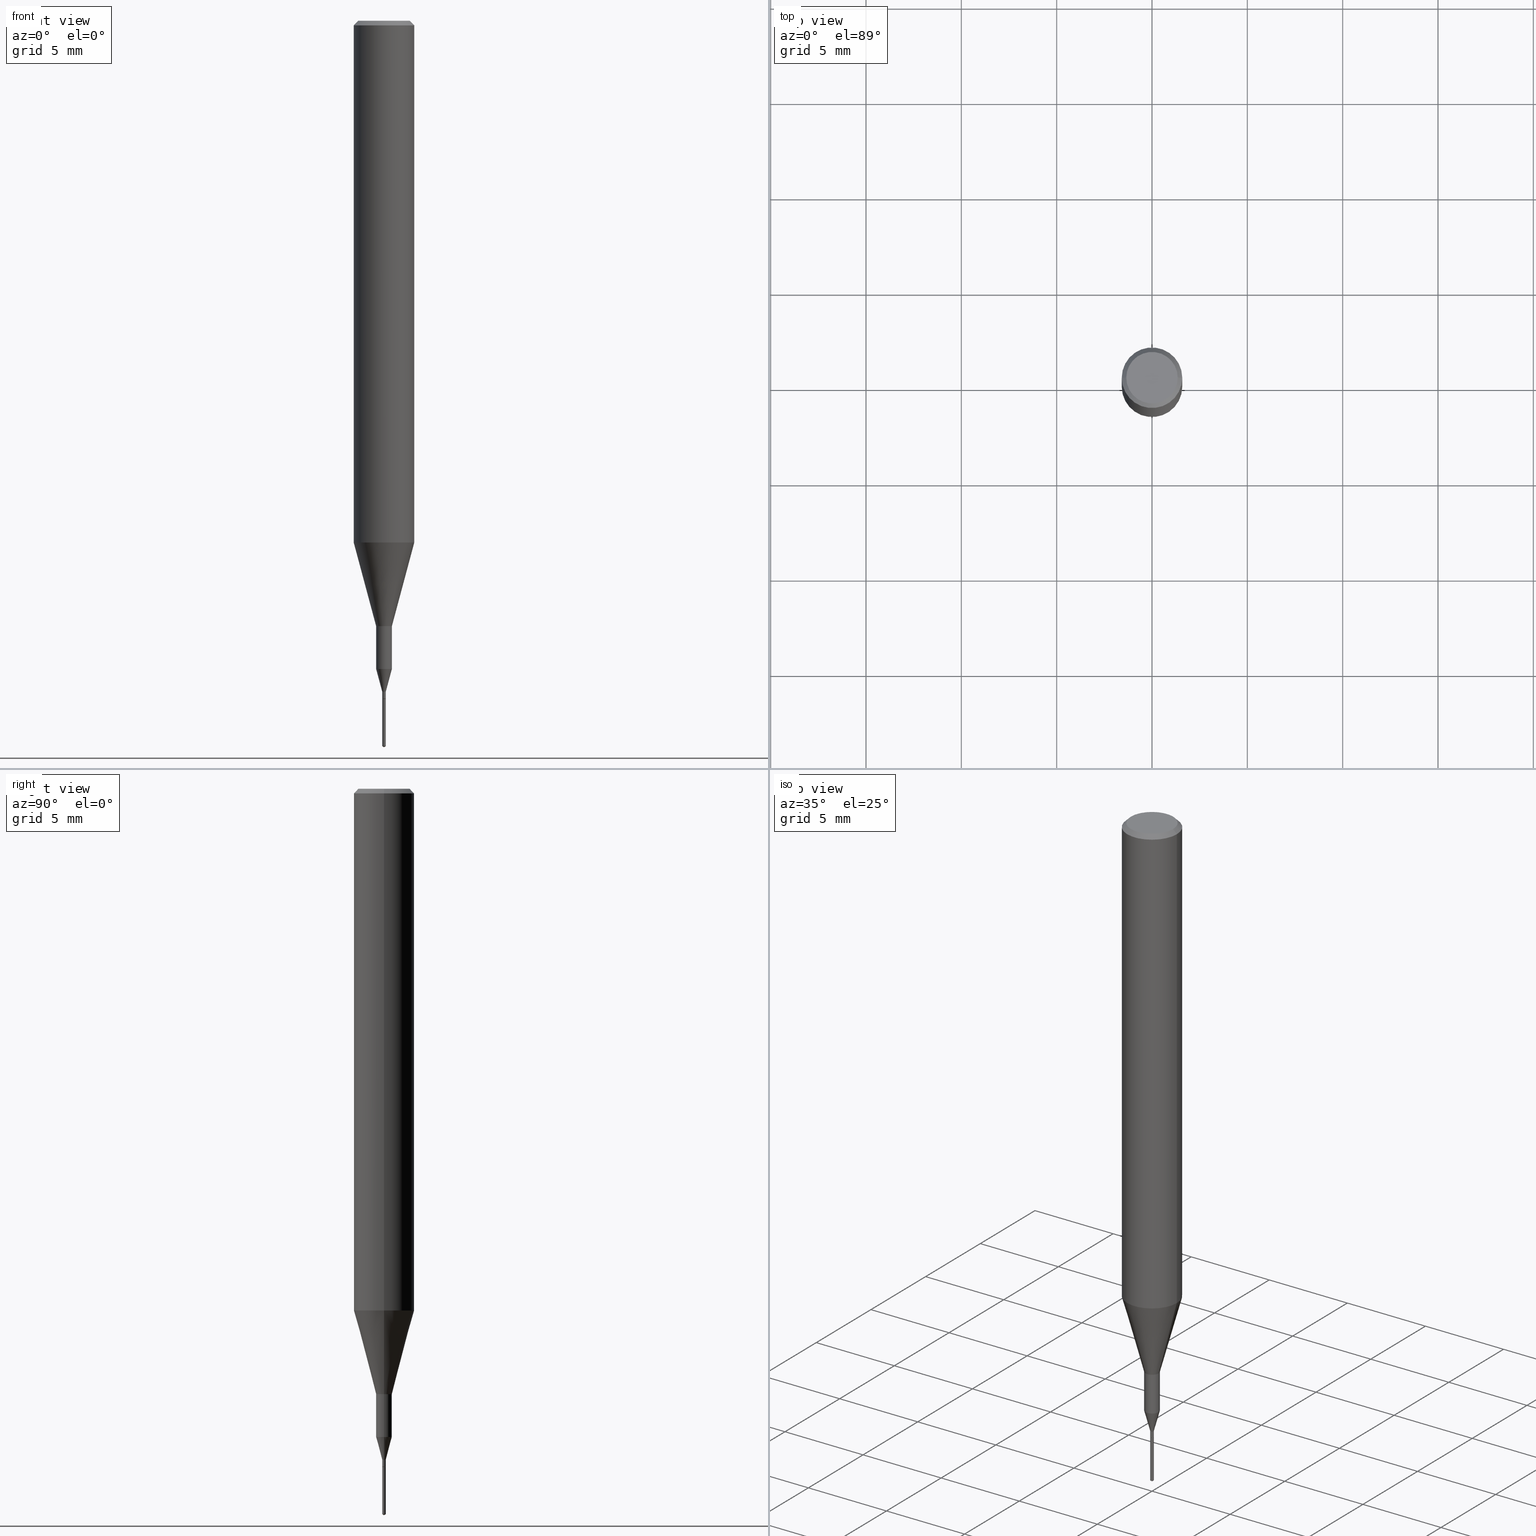
[diagram: canonical four-view strip — front | top / right | iso, engineering-drawing reading convention]
A machine part, canonical four-view strip (front | top / right | iso — engineering-drawing reading convention). The complete STEP part file that produces these views, byte-faithful:
ISO-10303-21;
HEADER;
FILE_DESCRIPTION (( 'STEP AP203' ),
    '1' );
FILE_NAME ('07242.STEP',
    '2024-04-19T13:30:16',
    ( '' ),
    ( '' ),
    'SwSTEP 2.0',
    'SolidWorks 2023',
    '' );
FILE_SCHEMA (( 'CONFIG_CONTROL_DESIGN' ));
ENDSEC;

DATA;
#1 = VERTEX_POINT ( 'NONE', #499 ) ;
#2 = ADVANCED_FACE ( 'NONE', ( #43 ), #189, .T. ) ;
#3 = CARTESIAN_POINT ( 'NONE',  ( 0.003050000000000000194, -4.909371910547346396E-15, -1.400000000000000133 ) ) ;
#4 = CYLINDRICAL_SURFACE ( 'NONE', #470, 0.01624999999999999709 ) ;
#5 = CONICAL_SURFACE ( 'NONE', #95, 65.52281426576006140, 1.029744258676598134 ) ;
#6 = CIRCLE ( 'NONE', #341, 0.003550000000000021021 ) ;
#7 = CARTESIAN_POINT ( 'NONE',  ( 0.000000000000000000, 0.000000000000000000, 0.000000000000000000 ) ) ;
#8 = EDGE_CURVE ( 'NONE', #514, #584, #266, .T. ) ;
#9 = CARTESIAN_POINT ( 'NONE',  ( 2.634730117954813298E-29, -3.761696332605275695E-15, -1.077392650149939346 ) ) ;
#10 = CARTESIAN_POINT ( 'NONE',  ( -2.478951750575200281E-17, -0.003550000000004887354, -1.400000000000000133 ) ) ;
#11 = EDGE_CURVE ( 'NONE', #154, #293, #531, .T. ) ;
#12 = LENGTH_MEASURE_WITH_UNIT ( LENGTH_MEASURE( 0.02539999999999999897 ), #551 );
#13 = ADVANCED_FACE ( 'NONE', ( #362 ), #498, .T. ) ;
#14 = CARTESIAN_POINT ( 'NONE',  ( 0.000000000000000000, 0.000000000000000000, 0.000000000000000000 ) ) ;
#15 = AXIS2_PLACEMENT_3D ( 'NONE', #49, #237, #193 ) ;
#16 = APPROVAL_ROLE ( '' ) ;
#17 = CARTESIAN_POINT ( 'NONE',  ( 3.388930671611362400E-29, -4.838494839368830984E-15, -1.385799999999999921 ) ) ;
#18 = DIRECTION ( 'NONE',  ( 1.000000000000000000, -6.982962677686266711E-15, 4.876176775795935793E-29 ) ) ;
#19 = ADVANCED_FACE ( 'NONE', ( #482 ), #5, .T. ) ;
#20 = DIRECTION ( 'NONE',  ( 1.000000000000000000, -6.982962677686288799E-15, 0.000000000000000000 ) ) ;
#21 = ADVANCED_FACE ( 'NONE', ( #182 ), #315, .T. ) ;
#22 = EDGE_CURVE ( 'NONE', #93, #188, #415, .T. ) ;
#23 = AXIS2_PLACEMENT_3D ( 'NONE', #273, #397, #20 ) ;
#24 = EDGE_CURVE ( 'NONE', #568, #580, #62, .T. ) ;
#25 = CARTESIAN_POINT ( 'NONE',  ( 0.000000000000000000, 0.000000000000000000, 0.000000000000000000 ) ) ;
#26 = DATE_AND_TIME ( #375, #67 ) ;
#27 = DIRECTION ( 'NONE',  ( -2.445468806185136877E-29, 3.491481338843145188E-15, 1.000000000000000000 ) ) ;
#28 = DIRECTION ( 'NONE',  ( -2.445468806185136597E-29, 3.491481338843145583E-15, 1.000000000000000000 ) ) ;
#29 = CARTESIAN_POINT ( 'NONE',  ( 0.000000000000000000, 0.000000000000000000, 0.000000000000000000 ) ) ;
#30 = FACE_OUTER_BOUND ( 'NONE', #391, .T. ) ;
#31 = PERSON_AND_ORGANIZATION ( #455, #310 ) ;
#32 = CARTESIAN_POINT ( 'NONE',  ( -2.478951750575200590E-17, -0.003550000000004888221, -1.400000000000000133 ) ) ;
#33 = LINE ( 'NONE', #127, #439 ) ;
#34 = ORIENTED_EDGE ( 'NONE', *, *, #22, .T. ) ;
#35 = CONICAL_SURFACE ( 'NONE', #365, 65.52281426576006140, 1.029744258676598134 ) ;
#36 = EDGE_LOOP ( 'NONE', ( #271, #564, #495 ) ) ;
#37 = AXIS2_PLACEMENT_3D ( 'NONE', #371, #506, #323 ) ;
#38 = CARTESIAN_POINT ( 'NONE',  ( -9.286691297279199858E-28, 1.318548970531025661E-13, 37.87007874015748143 ) ) ;
#39 = VERTEX_POINT ( 'NONE', #68 ) ;
#40 = APPROVAL_PERSON_ORGANIZATION ( #571, #408, #300 ) ;
#41 = ORIENTED_EDGE ( 'NONE', *, *, #553, .F. ) ;
#42 = EDGE_CURVE ( 'NONE', #532, #414, #250, .T. ) ;
#43 = FACE_OUTER_BOUND ( 'NONE', #335, .T. ) ;
#44 = VECTOR ( 'NONE', #103, 39.37007874015748143 ) ;
#45 = CYLINDRICAL_SURFACE ( 'NONE', #65, 0.003550000000000011480 ) ;
#46 = LOCAL_TIME ( 9, 30, 16.00000000000000000, #290 ) ;
#47 = CARTESIAN_POINT ( 'NONE',  ( 3.423656328659191123E-29, -4.888073874380404052E-15, -1.400000000000000133 ) ) ;
#48 = EDGE_CURVE ( 'NONE', #414, #188, #471, .T. ) ;
#49 = CARTESIAN_POINT ( 'NONE',  ( 3.056836007731421306E-29, -4.364351673553932471E-15, -1.250000000000000000 ) ) ;
#50 = DIRECTION ( 'NONE',  ( -2.445468806185136877E-29, 3.491481338843145188E-15, 1.000000000000000000 ) ) ;
#51 = DIRECTION ( 'NONE',  ( -2.445468806185136877E-29, 3.491481338843145188E-15, 1.000000000000000000 ) ) ;
#52 = AXIS2_PLACEMENT_3D ( 'NONE', #340, #297, #522 ) ;
#53 = DIRECTION ( 'NONE',  ( 1.000000000000000000, -6.982962677686267499E-15, 4.876176775795936353E-29 ) ) ;
#54 = CIRCLE ( 'NONE', #383, 0.003549999999999998903 ) ;
#55 = ADVANCED_FACE ( 'NONE', ( #208 ), #71, .T. ) ;
#56 = CARTESIAN_POINT ( 'NONE',  ( 2.292627005798580623E-31, -3.273263755165470801E-17, -0.009375000000000062103 ) ) ;
#57 = CARTESIAN_POINT ( 'NONE',  ( -2.478951750574959925E-17, -0.003550000000005227793, -1.497866944802451972 ) ) ;
#58 = FACE_OUTER_BOUND ( 'NONE', #369, .T. ) ;
#59 = ORIENTED_EDGE ( 'NONE', *, *, #345, .T. ) ;
#60 = CARTESIAN_POINT ( 'NONE',  ( 3.422433594256099443E-29, -4.886328133710982549E-15, -1.399500000000000188 ) ) ;
#61 = CARTESIAN_POINT ( 'NONE',  ( 0.01624999999999999709, -4.477824817066334148E-15, -1.250000000000000000 ) ) ;
#62 = CIRCLE ( 'NONE', #15, 0.01624999999999999709 ) ;
#63 = CARTESIAN_POINT ( 'NONE',  ( 2.522426711951778722E-17, 0.003549999999995111753, -1.400000000000000133 ) ) ;
#64 = APPROVAL_DATE_TIME ( #26, #377 ) ;
#65 = AXIS2_PLACEMENT_3D ( 'NONE', #14, #500, #274 ) ;
#66 = EDGE_CURVE ( 'NONE', #244, #414, #343, .T. ) ;
#67 = LOCAL_TIME ( 9, 30, 16.00000000000000000, #257 ) ;
#68 = CARTESIAN_POINT ( 'NONE',  ( -0.05312499999999999861, 3.873362110279099094E-16, -5.787680772773044021E-18 ) ) ;
#69 = SECURITY_CLASSIFICATION_LEVEL ( 'unclassified' ) ;
#70 = EDGE_CURVE ( 'NONE', #188, #93, #82, .T. ) ;
#71 = CYLINDRICAL_SURFACE ( 'NONE', #548, 0.06250000000000006939 ) ;
#72 = CARTESIAN_POINT ( 'NONE',  ( 2.522426711952018461E-17, 0.003549999999994770013, -1.497866944802451972 ) ) ;
#73 = COORDINATED_UNIVERSAL_TIME_OFFSET ( 5, 0, .BEHIND. ) ;
#74 = DIRECTION ( 'NONE',  ( -0.2588190451025206285, 5.211531920934544731E-15, 0.9659258262890682012 ) ) ;
#75 = DIRECTION ( 'NONE',  ( -2.445468806185136597E-29, 3.491481338843145583E-15, 1.000000000000000000 ) ) ;
#76 = AXIS2_PLACEMENT_3D ( 'NONE', #324, #447, #534 ) ;
#77 = LINE ( 'NONE', #434, #138 ) ;
#78 = CIRCLE ( 'NONE', #367, 0.06250000000000000000 ) ;
#79 = EDGE_CURVE ( 'NONE', #228, #234, #427, .T. ) ;
#80 = CARTESIAN_POINT ( 'NONE',  ( 0.06250000000000000000, -4.615137624123753937E-16, -0.009375000000000062103 ) ) ;
#81 = DIRECTION ( 'NONE',  ( -6.982962677686266711E-15, -1.000000000000000000, 0.000000000000000000 ) ) ;
#82 = CIRCLE ( 'NONE', #52, 0.003550000000000000204 ) ;
#83 = AXIS2_PLACEMENT_3D ( 'NONE', #558, #467, #142 ) ;
#84 = EDGE_LOOP ( 'NONE', ( #223, #440, #421, #475 ) ) ;
#85 = CARTESIAN_POINT ( 'NONE',  ( 3.273022675932164199E-29, -4.673008940340767374E-15, -1.338402954743875384 ) ) ;
#86 = CC_DESIGN_PERSON_AND_ORGANIZATION_ASSIGNMENT ( #346, #428, ( #185 ) ) ;
#87 = DIRECTION ( 'NONE',  ( -2.452008562004351188E-29, 3.482116036290244915E-15, 1.000000000000000000 ) ) ;
#88 = FACE_OUTER_BOUND ( 'NONE', #404, .T. ) ;
#89 = EDGE_CURVE ( 'NONE', #514, #580, #115, .T. ) ;
#90 = ORIENTED_EDGE ( 'NONE', *, *, #496, .F. ) ;
#91 = DIRECTION ( 'NONE',  ( 6.982962677686265922E-15, 1.000000000000000000, -3.482116036290244915E-15 ) ) ;
#92 = DIRECTION ( 'NONE',  ( -2.452008562004351188E-29, 3.482116036290244915E-15, 1.000000000000000000 ) ) ;
#93 = VERTEX_POINT ( 'NONE', #32 ) ;
#94 = DIRECTION ( 'NONE',  ( 2.445468806185136597E-29, -3.491481338843145583E-15, -1.000000000000000000 ) ) ;
#95 = AXIS2_PLACEMENT_3D ( 'NONE', #215, #87, #355 ) ;
#96 = LINE ( 'NONE', #10, #44 ) ;
#97 = DIRECTION ( 'NONE',  ( -2.445468806185136597E-29, 3.491481338843145583E-15, 1.000000000000000000 ) ) ;
#98 = ORIENTED_EDGE ( 'NONE', *, *, #441, .T. ) ;
#99 = DIRECTION ( 'NONE',  ( -6.982962677686266711E-15, -1.000000000000000000, 0.000000000000000000 ) ) ;
#100 = EDGE_CURVE ( 'NONE', #584, #514, #559, .T. ) ;
#101 = DESIGN_CONTEXT ( 'detailed design', #443, 'design' ) ;
#102 = LINE ( 'NONE', #332, #261 ) ;
#103 = DIRECTION ( 'NONE',  ( -2.452008562004351188E-29, 3.482116036290244915E-15, 1.000000000000000000 ) ) ;
#104 = AXIS2_PLACEMENT_3D ( 'NONE', #317, #106, #99 ) ;
#105 = CARTESIAN_POINT ( 'NONE',  ( 0.003550000000000021021, -4.863284356874617124E-15, -1.385799999999999921 ) ) ;
#106 = DIRECTION ( 'NONE',  ( -2.452008562004351188E-29, 3.482116036290244915E-15, 1.000000000000000000 ) ) ;
#107 = ORIENTED_EDGE ( 'NONE', *, *, #221, .T. ) ;
#108 = LINE ( 'NONE', #190, #242 ) ;
#109 = ORIENTED_EDGE ( 'NONE', *, *, #11, .F. ) ;
#110 = EDGE_CURVE ( 'NONE', #262, #584, #524, .T. ) ;
#111 = CALENDAR_DATE ( 2024, 19, 4 ) ;
#112 = ORIENTED_EDGE ( 'NONE', *, *, #48, .T. ) ;
#113 = AXIS2_PLACEMENT_3D ( 'NONE', #352, #75, #120 ) ;
#114 = VERTEX_POINT ( 'NONE', #485 ) ;
#115 = LINE ( 'NONE', #295, #387 ) ;
#116 = ADVANCED_FACE ( 'NONE', ( #579 ), #136, .F. ) ;
#117 = ORIENTED_EDGE ( 'NONE', *, *, #248, .F. ) ;
#118 = AXIS2_PLACEMENT_3D ( 'NONE', #9, #412, #195 ) ;
#119 = CALENDAR_DATE ( 2024, 19, 4 ) ;
#120 = DIRECTION ( 'NONE',  ( 1.000000000000000000, -6.982962677686287221E-15, 0.000000000000000000 ) ) ;
#121 = CIRCLE ( 'NONE', #448, 0.003550000000000021021 ) ;
#122 = DIRECTION ( 'NONE',  ( 1.000000000000000000, -6.982962677686250933E-15, 0.000000000000000000 ) ) ;
#123 = EDGE_CURVE ( 'NONE', #580, #568, #301, .T. ) ;
#124 = PERSON_AND_ORGANIZATION ( #455, #310 ) ;
#125 = CYLINDRICAL_SURFACE ( 'NONE', #309, 0.01624999999999999709 ) ;
#126 = DIRECTION ( 'NONE',  ( -2.445468806185136597E-29, 3.491481338843145583E-15, 1.000000000000000000 ) ) ;
#127 = CARTESIAN_POINT ( 'NONE',  ( -0.06250000000000012490, -3.317607122755211895E-15, -1.077392650149939346 ) ) ;
#128 = VERTEX_POINT ( 'NONE', #105 ) ;
#129 = CARTESIAN_POINT ( 'NONE',  ( 3.423656328659191123E-29, -4.888073874380404052E-15, -1.400000000000000133 ) ) ;
#130 = ORIENTED_EDGE ( 'NONE', *, *, #395, .F. ) ;
#131 = DIRECTION ( 'NONE',  ( 1.000000000000000000, -6.982962677686126293E-15, 0.000000000000000000 ) ) ;
#132 = ORIENTED_EDGE ( 'NONE', *, *, #372, .T. ) ;
#133 = ORIENTED_EDGE ( 'NONE', *, *, #187, .T. ) ;
#134 = DIRECTION ( 'NONE',  ( 1.000000000000000000, -6.982962677686266711E-15, 0.000000000000000000 ) ) ;
#135 = ORIENTED_EDGE ( 'NONE', *, *, #490, .F. ) ;
#136 = PLANE ( 'NONE',  #373 ) ;
#137 = CYLINDRICAL_SURFACE ( 'NONE', #104, 0.003549999999999999337 ) ;
#138 = VECTOR ( 'NONE', #167, 39.37007874015748143 ) ;
#139 = AXIS2_PLACEMENT_3D ( 'NONE', #25, #211, #577 ) ;
#140 = CYLINDRICAL_SURFACE ( 'NONE', #311, 0.06250000000000006939 ) ;
#141 = AXIS2_PLACEMENT_3D ( 'NONE', #225, #537, #131 ) ;
#142 = DIRECTION ( 'NONE',  ( 1.000000000000000000, -6.982962677686266711E-15, 4.875930095424100059E-29 ) ) ;
#143 = CARTESIAN_POINT ( 'NONE',  ( 3.423656328659191123E-29, -4.888073874380404052E-15, -1.400000000000000133 ) ) ;
#144 = MECHANICAL_CONTEXT ( 'NONE', #363, 'mechanical' ) ;
#145 = ADVANCED_FACE ( 'NONE', ( #286 ), #468, .T. ) ;
#146 = DIRECTION ( 'NONE',  ( -2.445468806185136597E-29, 3.491481338843145583E-15, 1.000000000000000000 ) ) ;
#147 = ADVANCED_FACE ( 'NONE', ( #578 ), #125, .T. ) ;
#148 = AXIS2_PLACEMENT_3D ( 'NONE', #157, #344, #161 ) ;
#149 = EDGE_LOOP ( 'NONE', ( #491, #130 ) ) ;
#150 = PERSON_AND_ORGANIZATION ( #455, #310 ) ;
#151 = ORIENTED_EDGE ( 'NONE', *, *, #187, .F. ) ;
#152 = PERSON_AND_ORGANIZATION_ROLE ( 'classification_officer' ) ;
#153 = ORIENTED_EDGE ( 'NONE', *, *, #395, .T. ) ;
#154 = VERTEX_POINT ( 'NONE', #214 ) ;
#155 = DIRECTION ( 'NONE',  ( 6.090539988449573332E-15, 0.8571673007020851331, 0.5150380749100994526 ) ) ;
#156 = PERSON_AND_ORGANIZATION ( #455, #310 ) ;
#157 = CARTESIAN_POINT ( 'NONE',  ( 7.076796394983739835E-47, -1.010378970665454992E-32, -2.893840386385196200E-18 ) ) ;
#158 = DATE_AND_TIME ( #351, #285 ) ;
#159 = ORIENTED_EDGE ( 'NONE', *, *, #441, .F. ) ;
#160 = CARTESIAN_POINT ( 'NONE',  ( 0.000000000000000000, 0.000000000000000000, 0.000000000000000000 ) ) ;
#161 = DIRECTION ( 'NONE',  ( -1.000000000000000000, 6.982962677686265922E-15, -4.876176775795935793E-29 ) ) ;
#162 = APPROVAL_DATE_TIME ( #515, #486 ) ;
#163 = DIRECTION ( 'NONE',  ( 1.000000000000000000, -6.982962677686266711E-15, 4.875930095424100059E-29 ) ) ;
#164 = EDGE_CURVE ( 'NONE', #262, #128, #121, .T. ) ;
#165 = DIRECTION ( 'NONE',  ( -0.2588190451025214611, 5.211531920934551042E-15, 0.9659258262890682012 ) ) ;
#166 = ORIENTED_EDGE ( 'NONE', *, *, #248, .T. ) ;
#167 = DIRECTION ( 'NONE',  ( -0.7071067811865454633, 2.468850131082235367E-15, -0.7071067811865495711 ) ) ;
#168 =( GEOMETRIC_REPRESENTATION_CONTEXT ( 3 ) GLOBAL_UNCERTAINTY_ASSIGNED_CONTEXT ( ( #456 ) ) GLOBAL_UNIT_ASSIGNED_CONTEXT ( ( #277, #233, #400 ) ) REPRESENTATION_CONTEXT ( 'NONE', 'WORKASPACE' ) );
#169 = ORIENTED_EDGE ( 'NONE', *, *, #11, .T. ) ;
#170 = AXIS2_PLACEMENT_3D ( 'NONE', #587, #94, #543 ) ;
#171 = CC_DESIGN_PERSON_AND_ORGANIZATION_ASSIGNMENT ( #156, #519, ( #185 ) ) ;
#172 = EDGE_LOOP ( 'NONE', ( #382, #153, #555, #205 ) ) ;
#173 = DIRECTION ( 'NONE',  ( 1.000000000000000000, -6.982962677686126293E-15, 0.000000000000000000 ) ) ;
#174 = EDGE_CURVE ( 'NONE', #580, #255, #581, .T. ) ;
#175 = ORIENTED_EDGE ( 'NONE', *, *, #496, .T. ) ;
#176 = EDGE_CURVE ( 'NONE', #197, #154, #481, .T. ) ;
#177 = PRODUCT ( '07242', '07242', '', ( #144 ) ) ;
#178 = DIRECTION ( 'NONE',  ( 1.000000000000000000, -6.982962677686258033E-15, 0.000000000000000000 ) ) ;
#179 = CARTESIAN_POINT ( 'NONE',  ( 0.06250000000000012490, -4.198131499960668153E-15, -1.077392650149939346 ) ) ;
#180 = ORIENTED_EDGE ( 'NONE', *, *, #123, .T. ) ;
#181 = FACE_OUTER_BOUND ( 'NONE', #172, .T. ) ;
#182 = FACE_OUTER_BOUND ( 'NONE', #583, .T. ) ;
#183 = EDGE_LOOP ( 'NONE', ( #34, #331 ) ) ;
#184 = EDGE_LOOP ( 'NONE', ( #339, #59, #520, #334 ) ) ;
#185 = PRODUCT_DEFINITION_FORMATION_WITH_SPECIFIED_SOURCE ( 'ANY', '', #177, .NOT_KNOWN. ) ;
#186 = DIRECTION ( 'NONE',  ( -2.445468806185136597E-29, 3.491481338843145583E-15, 1.000000000000000000 ) ) ;
#187 = EDGE_CURVE ( 'NONE', #39, #293, #77, .T. ) ;
#188 = VERTEX_POINT ( 'NONE', #435 ) ;
#189 = CONICAL_SURFACE ( 'NONE', #282, 0.06250000000000012490, 0.2617993877991501295 ) ;
#190 = CARTESIAN_POINT ( 'NONE',  ( 0.003550000000000011480, -2.478951750578632443E-17, 1.731042755407562572E-31 ) ) ;
#191 = DIRECTION ( 'NONE',  ( -2.445468806185136597E-29, 3.491481338843145583E-15, 1.000000000000000000 ) ) ;
#192 = DIRECTION ( 'NONE',  ( 0.7071067811866202923, -2.468850131083019889E-15, 0.7071067811864746311 ) ) ;
#193 = DIRECTION ( 'NONE',  ( 1.000000000000000000, -6.982962677686288799E-15, 0.000000000000000000 ) ) ;
#194 = ADVANCED_FACE ( 'NONE', ( #478 ), #258, .T. ) ;
#195 = DIRECTION ( 'NONE',  ( 1.000000000000000000, -6.982962677686264344E-15, 0.000000000000000000 ) ) ;
#196 = LINE ( 'NONE', #547, #429 ) ;
#197 = VERTEX_POINT ( 'NONE', #217 ) ;
#198 = ADVANCED_FACE ( 'NONE', ( #438 ), #35, .T. ) ;
#199 = AXIS2_PLACEMENT_3D ( 'NONE', #487, #265, #432 ) ;
#200 = DIRECTION ( 'NONE',  ( 2.445468806185136597E-29, -3.491481338843145583E-15, -1.000000000000000000 ) ) ;
#201 = AXIS2_PLACEMENT_3D ( 'NONE', #410, #466, #224 ) ;
#202 = COORDINATED_UNIVERSAL_TIME_OFFSET ( 5, 0, .BEHIND. ) ;
#203 = ORIENTED_EDGE ( 'NONE', *, *, #24, .F. ) ;
#204 = CC_DESIGN_APPROVAL ( #377, ( #275 ) ) ;
#205 = ORIENTED_EDGE ( 'NONE', *, *, #380, .F. ) ;
#206 = ORIENTED_EDGE ( 'NONE', *, *, #174, .T. ) ;
#207 = DIRECTION ( 'NONE',  ( -6.982962677686266711E-15, -1.000000000000000000, 0.000000000000000000 ) ) ;
#208 = FACE_OUTER_BOUND ( 'NONE', #488, .T. ) ;
#209 = SHAPE_DEFINITION_REPRESENTATION ( #497, #392 ) ;
#210 = LOCAL_TIME ( 9, 30, 16.00000000000000000, #202 ) ;
#211 = DIRECTION ( 'NONE',  ( -2.445468806185136597E-29, 3.491481338843145583E-15, 1.000000000000000000 ) ) ;
#212 = DIRECTION ( 'NONE',  ( 0.7071067811865454633, -7.319954787623248157E-15, -0.7071067811865495711 ) ) ;
#213 = ORIENTED_EDGE ( 'NONE', *, *, #396, .T. ) ;
#214 = CARTESIAN_POINT ( 'NONE',  ( 0.06250000000000000000, -4.691678049070463404E-16, -0.009375000000000062103 ) ) ;
#215 = CARTESIAN_POINT ( 'NONE',  ( -9.286691297279199858E-28, 1.318548970531025661E-13, 37.87007874015748143 ) ) ;
#216 = CARTESIAN_POINT ( 'NONE',  ( -0.01625000000000000056, -4.557545745779751189E-15, -1.338402954743875384 ) ) ;
#217 = CARTESIAN_POINT ( 'NONE',  ( 0.05312499999999999861, -4.129888592719939842E-16, -5.787680772767651417E-18 ) ) ;
#218 = ORIENTED_EDGE ( 'NONE', *, *, #372, .F. ) ;
#219 = EDGE_LOOP ( 'NONE', ( #107, #175, #374, #41 ) ) ;
#220 = DIRECTION ( 'NONE',  ( -6.982962677686265922E-15, -1.000000000000000000, 3.468864327942037160E-15 ) ) ;
#221 = EDGE_CURVE ( 'NONE', #114, #1, #289, .T. ) ;
#222 = DIRECTION ( 'NONE',  ( 1.000000000000000000, -6.982962677686258033E-15, 0.000000000000000000 ) ) ;
#223 = ORIENTED_EDGE ( 'NONE', *, *, #8, .T. ) ;
#224 = DIRECTION ( 'NONE',  ( 1.000000000000000000, -6.982962677686264344E-15, 0.000000000000000000 ) ) ;
#225 = CARTESIAN_POINT ( 'NONE',  ( 3.423656328659191123E-29, -4.888073874380404052E-15, -1.400000000000000133 ) ) ;
#226 = VECTOR ( 'NONE', #155, 39.37007874015748854 ) ;
#227 = AXIS2_PLACEMENT_3D ( 'NONE', #545, #92, #245 ) ;
#228 = VERTEX_POINT ( 'NONE', #582 ) ;
#229 = EDGE_CURVE ( 'NONE', #255, #154, #528, .T. ) ;
#230 = CARTESIAN_POINT ( 'NONE',  ( 2.634730117954813298E-29, -3.761696332605275695E-15, -1.077392650149939346 ) ) ;
#231 = AXIS2_PLACEMENT_3D ( 'NONE', #47, #457, #235 ) ;
#232 = CC_DESIGN_APPROVAL ( #408, ( #185 ) ) ;
#233 =( NAMED_UNIT ( * ) PLANE_ANGLE_UNIT ( ) SI_UNIT ( $, .RADIAN. ) );
#234 = VERTEX_POINT ( 'NONE', #299 ) ;
#235 = DIRECTION ( 'NONE',  ( 1.000000000000000000, -6.982962677686265922E-15, 4.876176775795935793E-29 ) ) ;
#236 = CC_DESIGN_PERSON_AND_ORGANIZATION_ASSIGNMENT ( #124, #523, ( #479 ) ) ;
#237 = DIRECTION ( 'NONE',  ( -2.445468806185136597E-29, 3.491481338843145583E-15, 1.000000000000000000 ) ) ;
#238 = VECTOR ( 'NONE', #74, 39.37007874015748854 ) ;
#239 = VECTOR ( 'NONE', #510, 39.37007874015748143 ) ;
#240 = DIRECTION ( 'NONE',  ( 1.000000000000000000, 0.000000000000000000, 0.000000000000000000 ) ) ;
#241 = ORIENTED_EDGE ( 'NONE', *, *, #358, .F. ) ;
#242 = VECTOR ( 'NONE', #51, 39.37007874015748143 ) ;
#243 = FACE_OUTER_BOUND ( 'NONE', #149, .T. ) ;
#244 = VERTEX_POINT ( 'NONE', #508 ) ;
#245 = DIRECTION ( 'NONE',  ( -6.982962677686266711E-15, -1.000000000000000000, 0.000000000000000000 ) ) ;
#246 = DIRECTION ( 'NONE',  ( 1.000000000000000000, -6.982962677686287221E-15, 0.000000000000000000 ) ) ;
#247 = ORIENTED_EDGE ( 'NONE', *, *, #79, .T. ) ;
#248 = EDGE_CURVE ( 'NONE', #354, #255, #452, .T. ) ;
#249 = DIRECTION ( 'NONE',  ( -2.445468806185136597E-29, 3.491481338843145583E-15, 1.000000000000000000 ) ) ;
#250 = CIRCLE ( 'NONE', #381, 0.003549999999999998903 ) ;
#251 = PERSON_AND_ORGANIZATION_ROLE ( 'design_owner' ) ;
#252 = ORIENTED_EDGE ( 'NONE', *, *, #24, .T. ) ;
#253 = MANIFOLD_SOLID_BREP ( 'Body-Move/Copy2[2]', #327 ) ;
#254 = DATE_AND_TIME ( #111, #305 ) ;
#255 = VERTEX_POINT ( 'NONE', #179 ) ;
#256 = ADVANCED_FACE ( 'NONE', ( #445 ), #137, .T. ) ;
#257 = COORDINATED_UNIVERSAL_TIME_OFFSET ( 5, 0, .BEHIND. ) ;
#258 = CONICAL_SURFACE ( 'NONE', #199, 0.01625000000000000056, 0.2617993877991493523 ) ;
#259 = DIRECTION ( 'NONE',  ( -2.445468806185136597E-29, 3.491481338843145583E-15, 1.000000000000000000 ) ) ;
#260 = ADVANCED_FACE ( 'NONE', ( #58 ), #406, .T. ) ;
#261 = VECTOR ( 'NONE', #50, 39.37007874015748143 ) ;
#262 = VERTEX_POINT ( 'NONE', #399 ) ;
#263 = EDGE_LOOP ( 'NONE', ( #512, #329, #109, #320 ) ) ;
#264 = DIRECTION ( 'NONE',  ( -1.000000000000000000, 6.982962677686266711E-15, 0.000000000000000000 ) ) ;
#265 = DIRECTION ( 'NONE',  ( -2.445468806185136597E-29, 3.491481338843145583E-15, 1.000000000000000000 ) ) ;
#266 = CIRCLE ( 'NONE', #480, 0.01625000000000000056 ) ;
#267 = VECTOR ( 'NONE', #192, 39.37007874015748854 ) ;
#268 = CARTESIAN_POINT ( 'NONE',  ( -0.06250000000000012490, -3.317607122755211895E-15, -1.077392650149939346 ) ) ;
#269 = ORIENTED_EDGE ( 'NONE', *, *, #8, .F. ) ;
#270 = ORIENTED_EDGE ( 'NONE', *, *, #345, .F. ) ;
#271 = ORIENTED_EDGE ( 'NONE', *, *, #280, .F. ) ;
#272 = ADVANCED_FACE ( 'NONE', ( #451 ), #45, .T. ) ;
#273 = CARTESIAN_POINT ( 'NONE',  ( 3.056836007731421306E-29, -4.364351673553932471E-15, -1.250000000000000000 ) ) ;
#274 = DIRECTION ( 'NONE',  ( 1.000000000000000000, -6.982962677686265922E-15, 4.876176775795935232E-29 ) ) ;
#275 = SECURITY_CLASSIFICATION ( '', '', #69 ) ;
#276 = PRODUCT_RELATED_PRODUCT_CATEGORY ( 'detail', '', ( #177 ) ) ;
#277 =( CONVERSION_BASED_UNIT ( 'INCH', #12 ) LENGTH_UNIT ( ) NAMED_UNIT ( #469 ) );
#278 = EDGE_LOOP ( 'NONE', ( #535, #337, #540, #450 ) ) ;
#279 = ADVANCED_FACE ( 'NONE', ( #243 ), #453, .F. ) ;
#280 = EDGE_CURVE ( 'NONE', #244, #532, #405, .T. ) ;
#281 = EDGE_LOOP ( 'NONE', ( #544, #370, #270 ) ) ;
#282 = AXIS2_PLACEMENT_3D ( 'NONE', #230, #398, #393 ) ;
#283 = DIRECTION ( 'NONE',  ( 1.000000000000000000, -6.982962677686266711E-15, 0.000000000000000000 ) ) ;
#284 = APPLICATION_PROTOCOL_DEFINITION ( 'international standard', 'config_control_design', 1994, #443 ) ;
#285 = LOCAL_TIME ( 9, 30, 16.00000000000000000, #483 ) ;
#286 = FACE_OUTER_BOUND ( 'NONE', #556, .T. ) ;
#287 = EDGE_LOOP ( 'NONE', ( #90, #437, #342, #386 ) ) ;
#288 = CC_DESIGN_PERSON_AND_ORGANIZATION_ASSIGNMENT ( #477, #152, ( #275 ) ) ;
#289 = CIRCLE ( 'NONE', #113, 0.003550000000000002372 ) ;
#290 = COORDINATED_UNIVERSAL_TIME_OFFSET ( 5, 0, .BEHIND. ) ;
#291 = ORIENTED_EDGE ( 'NONE', *, *, #431, .T. ) ;
#292 = CONICAL_SURFACE ( 'NONE', #37, 0.06250000000000012490, 0.2617993877991501295 ) ;
#293 = VERTEX_POINT ( 'NONE', #549 ) ;
#294 = ADVANCED_FACE ( 'NONE', ( #502 ), #140, .T. ) ;
#295 = CARTESIAN_POINT ( 'NONE',  ( 0.01624999999999999709, -1.134731435124018242E-16, 7.923787260668394963E-31 ) ) ;
#296 = AXIS2_PLACEMENT_3D ( 'NONE', #60, #97, #246 ) ;
#297 = DIRECTION ( 'NONE',  ( -2.452008562004351188E-29, 3.482116036290244915E-15, 1.000000000000000000 ) ) ;
#298 = DATE_TIME_ROLE ( 'creation_date' ) ;
#299 = CARTESIAN_POINT ( 'NONE',  ( -0.003050000000000000194, -4.863753093765609816E-15, -1.400000000000000133 ) ) ;
#300 = APPROVAL_ROLE ( '' ) ;
#301 = CIRCLE ( 'NONE', #23, 0.01624999999999999709 ) ;
#302 = CARTESIAN_POINT ( 'NONE',  ( 0.06250000000000006939, -4.364351673553921624E-16, 3.047610484872463374E-30 ) ) ;
#303 = DIRECTION ( 'NONE',  ( 0.2588190451025214611, 1.565188264969621573E-15, 0.9659258262890682012 ) ) ;
#304 = APPROVAL_ROLE ( '' ) ;
#305 = LOCAL_TIME ( 9, 30, 16.00000000000000000, #73 ) ;
#306 = DIRECTION ( 'NONE',  ( -2.445468806185136877E-29, 3.491481338843145188E-15, 1.000000000000000000 ) ) ;
#307 = CARTESIAN_POINT ( 'NONE',  ( 3.663626915252010216E-29, -5.228857932299754273E-15, -1.497866944802451972 ) ) ;
#308 = ORIENTED_EDGE ( 'NONE', *, *, #431, .F. ) ;
#309 = AXIS2_PLACEMENT_3D ( 'NONE', #29, #259, #350 ) ;
#310 = ORGANIZATION ( 'UNSPECIFIED', 'UNSPECIFIED', '' ) ;
#311 = AXIS2_PLACEMENT_3D ( 'NONE', #7, #191, #360 ) ;
#312 = CARTESIAN_POINT ( 'NONE',  ( 3.273022675932164199E-29, -4.673008940340767374E-15, -1.338402954743875384 ) ) ;
#313 = CC_DESIGN_DATE_AND_TIME_ASSIGNMENT ( #254, #472, ( #275 ) ) ;
#314 = CARTESIAN_POINT ( 'NONE',  ( 3.423656328659191123E-29, -4.888073874380404052E-15, -1.400000000000000133 ) ) ;
#315 = CYLINDRICAL_SURFACE ( 'NONE', #227, 0.003549999999999999337 ) ;
#316 = AXIS2_PLACEMENT_3D ( 'NONE', #356, #590, #134 ) ;
#317 = CARTESIAN_POINT ( 'NONE',  ( 3.423656328659191123E-29, -4.888073874380404052E-15, -1.400000000000000133 ) ) ;
#318 = CIRCLE ( 'NONE', #517, 0.05312499999999999861 ) ;
#319 = CARTESIAN_POINT ( 'NONE',  ( 0.000000000000000000, 0.000000000000000000, 0.000000000000000000 ) ) ;
#320 = ORIENTED_EDGE ( 'NONE', *, *, #229, .F. ) ;
#321 = VECTOR ( 'NONE', #401, 39.37007874015748143 ) ;
#322 = ADVANCED_FACE ( 'NONE', ( #88 ), #389, .T. ) ;
#323 = DIRECTION ( 'NONE',  ( 1.000000000000000000, -6.982962677686264344E-15, 0.000000000000000000 ) ) ;
#324 = CARTESIAN_POINT ( 'NONE',  ( 3.423656328659191123E-29, -4.888073874380404052E-15, -1.400000000000000133 ) ) ;
#325 = DIRECTION ( 'NONE',  ( -2.445468806185136597E-29, 3.491481338843145583E-15, 1.000000000000000000 ) ) ;
#326 = EDGE_LOOP ( 'NONE', ( #473, #516, #269, #241 ) ) ;
#327 = CLOSED_SHELL ( 'NONE', ( #260, #294, #507, #147, #13, #272, #322, #279, #330, #422, #194, #525, #2, #55, #145, #411 ) ) ;
#328 = CARTESIAN_POINT ( 'NONE',  ( -0.01624999999999999709, -4.403217112386333737E-15, -1.250000000000000000 ) ) ;
#329 = ORIENTED_EDGE ( 'NONE', *, *, #361, .T. ) ;
#330 = ADVANCED_FACE ( 'NONE', ( #181 ), #521, .T. ) ;
#331 = ORIENTED_EDGE ( 'NONE', *, *, #70, .T. ) ;
#332 = CARTESIAN_POINT ( 'NONE',  ( -0.06250000000000006939, 4.440892098500631092E-16, -3.074334431409319267E-30 ) ) ;
#333 = PERSON_AND_ORGANIZATION ( #455, #310 ) ;
#334 = ORIENTED_EDGE ( 'NONE', *, *, #70, .F. ) ;
#335 = EDGE_LOOP ( 'NONE', ( #308, #252, #206, #117 ) ) ;
#336 = CALENDAR_DATE ( 2024, 19, 4 ) ;
#337 = ORIENTED_EDGE ( 'NONE', *, *, #164, .T. ) ;
#338 = EDGE_LOOP ( 'NONE', ( #563, #376, #529, #203 ) ) ;
#339 = ORIENTED_EDGE ( 'NONE', *, *, #48, .F. ) ;
#340 = CARTESIAN_POINT ( 'NONE',  ( 3.423656328659191123E-29, -4.888073874380404052E-15, -1.400000000000000133 ) ) ;
#341 = AXIS2_PLACEMENT_3D ( 'NONE', #17, #424, #554 ) ;
#342 = ORIENTED_EDGE ( 'NONE', *, *, #553, .T. ) ;
#343 = LINE ( 'NONE', #378, #226 ) ;
#344 = DIRECTION ( 'NONE',  ( 2.438088387897960049E-29, -3.491481338843145188E-15, -1.000000000000000000 ) ) ;
#345 = EDGE_CURVE ( 'NONE', #414, #532, #54, .T. ) ;
#346 = PERSON_AND_ORGANIZATION ( #455, #310 ) ;
#347 = CIRCLE ( 'NONE', #118, 0.06250000000000012490 ) ;
#348 = FACE_OUTER_BOUND ( 'NONE', #287, .T. ) ;
#349 = DATE_AND_TIME ( #336, #46 ) ;
#350 = DIRECTION ( 'NONE',  ( 1.000000000000000000, -6.982962677686267499E-15, 4.876176775795936353E-29 ) ) ;
#351 = CALENDAR_DATE ( 2024, 19, 4 ) ;
#352 = CARTESIAN_POINT ( 'NONE',  ( 3.422433594256099443E-29, -4.886328133710982549E-15, -1.399500000000000188 ) ) ;
#353 = DIRECTION ( 'NONE',  ( -2.445468806185136597E-29, 3.491481338843145583E-15, 1.000000000000000000 ) ) ;
#354 = VERTEX_POINT ( 'NONE', #268 ) ;
#355 = DIRECTION ( 'NONE',  ( -6.982962677686265922E-15, -1.000000000000000000, 3.468864327942037160E-15 ) ) ;
#356 = CARTESIAN_POINT ( 'NONE',  ( 2.292627005798580623E-31, -3.273263755165470801E-17, -0.009375000000000062103 ) ) ;
#357 = VECTOR ( 'NONE', #303, 39.37007874015747433 ) ;
#358 = EDGE_CURVE ( 'NONE', #128, #514, #442, .T. ) ;
#359 = ORIENTED_EDGE ( 'NONE', *, *, #174, .F. ) ;
#360 = DIRECTION ( 'NONE',  ( 1.000000000000000000, -6.982962677686266711E-15, 4.876176775795935793E-29 ) ) ;
#361 = EDGE_CURVE ( 'NONE', #354, #293, #102, .T. ) ;
#362 = FACE_OUTER_BOUND ( 'NONE', #326, .T. ) ;
#363 = APPLICATION_CONTEXT ( 'configuration controlled 3d designs of mechanical parts and assemblies' ) ;
#364 = CARTESIAN_POINT ( 'NONE',  ( 3.659701526712726431E-29, -5.249396901583489399E-15, -1.500000000000000222 ) ) ;
#365 = AXIS2_PLACEMENT_3D ( 'NONE', #38, #388, #220 ) ;
#366 = FACE_OUTER_BOUND ( 'NONE', #338, .T. ) ;
#367 = AXIS2_PLACEMENT_3D ( 'NONE', #56, #513, #283 ) ;
#368 = APPLICATION_PROTOCOL_DEFINITION ( 'international standard', 'config_control_design', 1994, #363 ) ;
#369 = EDGE_LOOP ( 'NONE', ( #159, #588, #169, #151 ) ) ;
#370 = ORIENTED_EDGE ( 'NONE', *, *, #280, .T. ) ;
#371 = CARTESIAN_POINT ( 'NONE',  ( 2.634730117954813298E-29, -3.761696332605275695E-15, -1.077392650149939346 ) ) ;
#372 = EDGE_CURVE ( 'NONE', #293, #154, #78, .T. ) ;
#373 = AXIS2_PLACEMENT_3D ( 'NONE', #314, #494, #91 ) ;
#374 = ORIENTED_EDGE ( 'NONE', *, *, #463, .F. ) ;
#375 = CALENDAR_DATE ( 2024, 19, 4 ) ;
#376 = ORIENTED_EDGE ( 'NONE', *, *, #100, .T. ) ;
#377 = APPROVAL ( #423, 'UNSPECIFIED' ) ;
#378 = CARTESIAN_POINT ( 'NONE',  ( 3.678173411635649529E-29, -5.223174054435366584E-15, -1.500000000000000222 ) ) ;
#379 = APPROVAL_DATE_TIME ( #349, #408 ) ;
#380 = EDGE_CURVE ( 'NONE', #1, #114, #474, .T. ) ;
#381 = AXIS2_PLACEMENT_3D ( 'NONE', #565, #419, #207 ) ;
#382 = ORIENTED_EDGE ( 'NONE', *, *, #396, .F. ) ;
#383 = AXIS2_PLACEMENT_3D ( 'NONE', #307, #394, #81 ) ;
#384 = DIRECTION ( 'NONE',  ( 1.000000000000000000, -6.982962677686258033E-15, 0.000000000000000000 ) ) ;
#385 = EDGE_CURVE ( 'NONE', #255, #354, #347, .T. ) ;
#386 = ORIENTED_EDGE ( 'NONE', *, *, #164, .F. ) ;
#387 = VECTOR ( 'NONE', #306, 39.37007874015748143 ) ;
#388 = DIRECTION ( 'NONE',  ( -2.452008562004351188E-29, 3.482116036290244915E-15, 1.000000000000000000 ) ) ;
#389 = CONICAL_SURFACE ( 'NONE', #141, 0.003050000000000000194, 0.7853981633975513077 ) ;
#390 = DIRECTION ( 'NONE',  ( -2.445468806185136597E-29, 3.491481338843145583E-15, 1.000000000000000000 ) ) ;
#391 = EDGE_LOOP ( 'NONE', ( #561, #98 ) ) ;
#392 = ADVANCED_BREP_SHAPE_REPRESENTATION ( '07242', ( #436, #253, #572 ), #168 ) ;
#393 = DIRECTION ( 'NONE',  ( 1.000000000000000000, -6.982962677686264344E-15, 0.000000000000000000 ) ) ;
#394 = DIRECTION ( 'NONE',  ( -2.452008562004351188E-29, 3.482116036290244915E-15, 1.000000000000000000 ) ) ;
#395 = EDGE_CURVE ( 'NONE', #234, #228, #407, .T. ) ;
#396 = EDGE_CURVE ( 'NONE', #234, #1, #476, .T. ) ;
#397 = DIRECTION ( 'NONE',  ( -2.445468806185136597E-29, 3.491481338843145583E-15, 1.000000000000000000 ) ) ;
#398 = DIRECTION ( 'NONE',  ( -2.445468806185136597E-29, 3.491481338843145583E-15, 1.000000000000000000 ) ) ;
#399 = CARTESIAN_POINT ( 'NONE',  ( -0.003550000000000021021, -4.837187219420422833E-15, -1.385799999999999921 ) ) ;
#400 =( NAMED_UNIT ( * ) SI_UNIT ( $, .STERADIAN. ) SOLID_ANGLE_UNIT ( ) );
#401 = DIRECTION ( 'NONE',  ( -5.985567269335740909E-15, -0.8571673007020814694, 0.5150380749101054478 ) ) ;
#402 = AXIS2_PLACEMENT_3D ( 'NONE', #312, #493, #222 ) ;
#403 = CARTESIAN_POINT ( 'NONE',  ( -0.003550000000000011480, 2.522426711948363817E-17, -1.746221957040497122E-31 ) ) ;
#404 = EDGE_LOOP ( 'NONE', ( #247, #213, #538, #566 ) ) ;
#405 = LINE ( 'NONE', #364, #321 ) ;
#406 = CONICAL_SURFACE ( 'NONE', #170, 0.06250000000000000000, 0.7853981633974453924 ) ;
#407 = CIRCLE ( 'NONE', #492, 0.003050000000000000194 ) ;
#408 = APPROVAL ( #576, 'UNSPECIFIED' ) ;
#409 = DIRECTION ( 'NONE',  ( 0.000000000000000000, 0.000000000000000000, 1.000000000000000000 ) ) ;
#410 = CARTESIAN_POINT ( 'NONE',  ( 2.634730117954813298E-29, -3.761696332605275695E-15, -1.077392650149939346 ) ) ;
#411 = ADVANCED_FACE ( 'NONE', ( #30 ), #570, .F. ) ;
#412 = DIRECTION ( 'NONE',  ( -2.445468806185136597E-29, 3.491481338843145583E-15, 1.000000000000000000 ) ) ;
#413 = DIRECTION ( 'NONE',  ( -2.445468806185136877E-29, 3.491481338843145188E-15, 1.000000000000000000 ) ) ;
#414 = VERTEX_POINT ( 'NONE', #72 ) ;
#415 = CIRCLE ( 'NONE', #76, 0.003550000000000000204 ) ;
#416 = VECTOR ( 'NONE', #527, 39.37007874015748854 ) ;
#417 = APPROVAL_STATUS ( 'not_yet_approved' ) ;
#418 = ORIENTED_EDGE ( 'NONE', *, *, #546, .F. ) ;
#419 = DIRECTION ( 'NONE',  ( -2.452008562004351188E-29, 3.482116036290244915E-15, 1.000000000000000000 ) ) ;
#420 = DIRECTION ( 'NONE',  ( -2.452008562004351188E-29, 3.482116036290244915E-15, 1.000000000000000000 ) ) ;
#421 = ORIENTED_EDGE ( 'NONE', *, *, #123, .F. ) ;
#422 = ADVANCED_FACE ( 'NONE', ( #348 ), #426, .T. ) ;
#423 = APPROVAL_STATUS ( 'not_yet_approved' ) ;
#424 = DIRECTION ( 'NONE',  ( -2.445468806185136597E-29, 3.491481338843145583E-15, 1.000000000000000000 ) ) ;
#425 = CARTESIAN_POINT ( 'NONE',  ( 3.423656328659191123E-29, -4.888073874380404052E-15, -1.400000000000000133 ) ) ;
#426 = CYLINDRICAL_SURFACE ( 'NONE', #139, 0.003550000000000011480 ) ;
#427 = CIRCLE ( 'NONE', #489, 0.003050000000000000194 ) ;
#428 = PERSON_AND_ORGANIZATION_ROLE ( 'creator' ) ;
#429 = VECTOR ( 'NONE', #413, 39.37007874015748143 ) ;
#430 = CARTESIAN_POINT ( 'NONE',  ( 1.415359278996747967E-46, -2.020757941330909984E-32, -5.787680772770392401E-18 ) ) ;
#431 = EDGE_CURVE ( 'NONE', #568, #354, #33, .T. ) ;
#432 = DIRECTION ( 'NONE',  ( 1.000000000000000000, -6.982962677686258033E-15, 0.000000000000000000 ) ) ;
#433 = ORIENTED_EDGE ( 'NONE', *, *, #229, .T. ) ;
#434 = CARTESIAN_POINT ( 'NONE',  ( -0.06250000000000000000, 4.037025298037369984E-16, -0.009375000000000062103 ) ) ;
#435 = CARTESIAN_POINT ( 'NONE',  ( 2.522426711952020310E-17, 0.003549999999995112621, -1.400000000000000133 ) ) ;
#436 = MANIFOLD_SOLID_BREP ( 'Body-Move/Copy2[1]', #541 ) ;
#437 = ORIENTED_EDGE ( 'NONE', *, *, #380, .T. ) ;
#438 = FACE_OUTER_BOUND ( 'NONE', #281, .T. ) ;
#439 = VECTOR ( 'NONE', #165, 39.37007874015747433 ) ;
#440 = ORIENTED_EDGE ( 'NONE', *, *, #536, .T. ) ;
#441 = EDGE_CURVE ( 'NONE', #197, #39, #318, .T. ) ;
#442 = LINE ( 'NONE', #585, #462 ) ;
#443 = APPLICATION_CONTEXT ( 'configuration controlled 3d designs of mechanical parts and assemblies' ) ;
#444 = EDGE_CURVE ( 'NONE', #228, #114, #557, .T. ) ;
#445 = FACE_OUTER_BOUND ( 'NONE', #184, .T. ) ;
#446 = ORIENTED_EDGE ( 'NONE', *, *, #176, .F. ) ;
#447 = DIRECTION ( 'NONE',  ( -2.452008562004351188E-29, 3.482116036290244915E-15, 1.000000000000000000 ) ) ;
#448 = AXIS2_PLACEMENT_3D ( 'NONE', #484, #353, #122 ) ;
#449 = EDGE_LOOP ( 'NONE', ( #180, #291, #511, #359 ) ) ;
#450 = ORIENTED_EDGE ( 'NONE', *, *, #100, .F. ) ;
#451 = FACE_OUTER_BOUND ( 'NONE', #219, .T. ) ;
#452 = CIRCLE ( 'NONE', #201, 0.06250000000000012490 ) ;
#453 = PLANE ( 'NONE',  #231 ) ;
#454 = CARTESIAN_POINT ( 'NONE',  ( 0.01625000000000000056, -4.786482083853169050E-15, -1.338402954743875384 ) ) ;
#455 = PERSON ( 'UNSPECIFIED', 'UNSPECIFIED', 'UNSPECIFIED', ('UNSPECIFIED'), ('UNSPECIFIED'), ('UNSPECIFIED') ) ;
#456 = UNCERTAINTY_MEASURE_WITH_UNIT (LENGTH_MEASURE( 1.000000000000000082E-05 ), #277, 'distance_accuracy_value', 'NONE');
#457 = DIRECTION ( 'NONE',  ( -2.438088387897960049E-29, 3.491481338843145188E-15, 1.000000000000000000 ) ) ;
#458 = CIRCLE ( 'NONE', #83, 0.05312499999999999861 ) ;
#459 = ORIENTED_EDGE ( 'NONE', *, *, #361, .F. ) ;
#460 = APPROVAL_PERSON_ORGANIZATION ( #333, #486, #16 ) ;
#461 = CARTESIAN_POINT ( 'NONE',  ( 0.000000000000000000, 0.000000000000000000, 0.000000000000000000 ) ) ;
#462 = VECTOR ( 'NONE', #539, 39.37007874015748854 ) ;
#463 = EDGE_CURVE ( 'NONE', #128, #262, #6, .T. ) ;
#464 = FACE_OUTER_BOUND ( 'NONE', #449, .T. ) ;
#465 = CARTESIAN_POINT ( 'NONE',  ( 2.292627005798580623E-31, -3.273263755165470801E-17, -0.009375000000000062103 ) ) ;
#466 = DIRECTION ( 'NONE',  ( -2.445468806185136597E-29, 3.491481338843145583E-15, 1.000000000000000000 ) ) ;
#467 = DIRECTION ( 'NONE',  ( -2.445468806185136597E-29, 3.491481338843145583E-15, 1.000000000000000000 ) ) ;
#468 = CONICAL_SURFACE ( 'NONE', #569, 0.06250000000000000000, 0.7853981633974453924 ) ;
#469 = DIMENSIONAL_EXPONENTS ( 1.000000000000000000, 0.000000000000000000, 0.000000000000000000, 0.000000000000000000, 0.000000000000000000, 0.000000000000000000, 0.000000000000000000 ) ;
#470 = AXIS2_PLACEMENT_3D ( 'NONE', #319, #146, #53 ) ;
#471 = LINE ( 'NONE', #63, #560 ) ;
#472 = DATE_TIME_ROLE ( 'classification_date' ) ;
#473 = ORIENTED_EDGE ( 'NONE', *, *, #463, .T. ) ;
#474 = CIRCLE ( 'NONE', #296, 0.003550000000000002372 ) ;
#475 = ORIENTED_EDGE ( 'NONE', *, *, #89, .F. ) ;
#476 = LINE ( 'NONE', #575, #416 ) ;
#477 = PERSON_AND_ORGANIZATION ( #455, #310 ) ;
#478 = FACE_OUTER_BOUND ( 'NONE', #278, .T. ) ;
#479 = PRODUCT_DEFINITION ( 'UNKNOWN', '', #185, #101 ) ;
#480 = AXIS2_PLACEMENT_3D ( 'NONE', #586, #186, #178 ) ;
#481 = LINE ( 'NONE', #80, #509 ) ;
#482 = FACE_OUTER_BOUND ( 'NONE', #36, .T. ) ;
#483 = COORDINATED_UNIVERSAL_TIME_OFFSET ( 5, 0, .BEHIND. ) ;
#484 = CARTESIAN_POINT ( 'NONE',  ( 3.388930671611362400E-29, -4.838494839368830984E-15, -1.385799999999999921 ) ) ;
#485 = CARTESIAN_POINT ( 'NONE',  ( 0.003550000000000002372, -4.911117651216768688E-15, -1.399500000000000188 ) ) ;
#486 = APPROVAL ( #417, 'UNSPECIFIED' ) ;
#487 = CARTESIAN_POINT ( 'NONE',  ( 3.273022675932164199E-29, -4.673008940340767374E-15, -1.338402954743875384 ) ) ;
#488 = EDGE_LOOP ( 'NONE', ( #459, #166, #433, #218 ) ) ;
#489 = AXIS2_PLACEMENT_3D ( 'NONE', #425, #518, #574 ) ;
#490 = EDGE_CURVE ( 'NONE', #39, #197, #458, .T. ) ;
#491 = ORIENTED_EDGE ( 'NONE', *, *, #79, .F. ) ;
#492 = AXIS2_PLACEMENT_3D ( 'NONE', #143, #325, #505 ) ;
#493 = DIRECTION ( 'NONE',  ( -2.445468806185136597E-29, 3.491481338843145583E-15, 1.000000000000000000 ) ) ;
#494 = DIRECTION ( 'NONE',  ( 2.452008562004350908E-29, -3.482116036290244915E-15, -1.000000000000000000 ) ) ;
#495 = ORIENTED_EDGE ( 'NONE', *, *, #42, .F. ) ;
#496 = EDGE_CURVE ( 'NONE', #1, #262, #501, .T. ) ;
#497 = PRODUCT_DEFINITION_SHAPE ( 'NONE', 'NONE',  #479 ) ;
#498 = CONICAL_SURFACE ( 'NONE', #402, 0.01625000000000000056, 0.2617993877991493523 ) ;
#499 = CARTESIAN_POINT ( 'NONE',  ( -0.003550000000000002372, -4.861103866591498615E-15, -1.399500000000000188 ) ) ;
#500 = DIRECTION ( 'NONE',  ( -2.445468806185136597E-29, 3.491481338843145583E-15, 1.000000000000000000 ) ) ;
#501 = LINE ( 'NONE', #403, #239 ) ;
#502 = FACE_OUTER_BOUND ( 'NONE', #263, .T. ) ;
#503 = CARTESIAN_POINT ( 'NONE',  ( -0.01625000000000000056, -4.557545745779751189E-15, -1.338402954743875384 ) ) ;
#504 = CC_DESIGN_DATE_AND_TIME_ASSIGNMENT ( #158, #298, ( #479 ) ) ;
#505 = DIRECTION ( 'NONE',  ( 1.000000000000000000, -6.982962677686126293E-15, 0.000000000000000000 ) ) ;
#506 = DIRECTION ( 'NONE',  ( -2.445468806185136597E-29, 3.491481338843145583E-15, 1.000000000000000000 ) ) ;
#507 = ADVANCED_FACE ( 'NONE', ( #464 ), #292, .T. ) ;
#508 = CARTESIAN_POINT ( 'NONE',  ( 3.678012843006527062E-29, -5.223174054435368162E-15, -1.500000000000000222 ) ) ;
#509 = VECTOR ( 'NONE', #212, 39.37007874015748143 ) ;
#510 = DIRECTION ( 'NONE',  ( -2.445468806185136877E-29, 3.491481338843145188E-15, 1.000000000000000000 ) ) ;
#511 = ORIENTED_EDGE ( 'NONE', *, *, #385, .F. ) ;
#512 = ORIENTED_EDGE ( 'NONE', *, *, #385, .T. ) ;
#513 = DIRECTION ( 'NONE',  ( -2.445468806185136597E-29, 3.491481338843145583E-15, 1.000000000000000000 ) ) ;
#514 = VERTEX_POINT ( 'NONE', #454 ) ;
#515 = DATE_AND_TIME ( #119, #210 ) ;
#516 = ORIENTED_EDGE ( 'NONE', *, *, #110, .T. ) ;
#517 = AXIS2_PLACEMENT_3D ( 'NONE', #430, #28, #163 ) ;
#518 = DIRECTION ( 'NONE',  ( -2.445468806185136597E-29, 3.491481338843145583E-15, 1.000000000000000000 ) ) ;
#519 = PERSON_AND_ORGANIZATION_ROLE ( 'design_supplier' ) ;
#520 = ORIENTED_EDGE ( 'NONE', *, *, #546, .T. ) ;
#521 = CONICAL_SURFACE ( 'NONE', #573, 0.003050000000000000194, 0.7853981633975513077 ) ;
#522 = DIRECTION ( 'NONE',  ( -6.982962677686265922E-15, -1.000000000000000000, 0.000000000000000000 ) ) ;
#523 = PERSON_AND_ORGANIZATION_ROLE ( 'creator' ) ;
#524 = LINE ( 'NONE', #216, #238 ) ;
#525 = ADVANCED_FACE ( 'NONE', ( #366 ), #4, .T. ) ;
#526 = ORIENTED_EDGE ( 'NONE', *, *, #42, .T. ) ;
#527 = DIRECTION ( 'NONE',  ( -0.7071067811866202923, 7.493145998870616062E-15, 0.7071067811864746311 ) ) ;
#528 = LINE ( 'NONE', #302, #562 ) ;
#529 = ORIENTED_EDGE ( 'NONE', *, *, #89, .T. ) ;
#530 = CARTESIAN_POINT ( 'NONE',  ( 0.06250000000000012490, -4.198131499960668153E-15, -1.077392650149939346 ) ) ;
#531 = CIRCLE ( 'NONE', #316, 0.06250000000000000000 ) ;
#532 = VERTEX_POINT ( 'NONE', #57 ) ;
#533 = CC_DESIGN_SECURITY_CLASSIFICATION ( #275, ( #185 ) ) ;
#534 = DIRECTION ( 'NONE',  ( -6.982962677686265922E-15, -1.000000000000000000, 0.000000000000000000 ) ) ;
#535 = ORIENTED_EDGE ( 'NONE', *, *, #110, .F. ) ;
#536 = EDGE_CURVE ( 'NONE', #584, #568, #196, .T. ) ;
#537 = DIRECTION ( 'NONE',  ( -2.445468806185136597E-29, 3.491481338843145583E-15, 1.000000000000000000 ) ) ;
#538 = ORIENTED_EDGE ( 'NONE', *, *, #221, .F. ) ;
#539 = DIRECTION ( 'NONE',  ( 0.2588190451025206285, 1.565188264969627095E-15, 0.9659258262890682012 ) ) ;
#540 = ORIENTED_EDGE ( 'NONE', *, *, #358, .T. ) ;
#541 = CLOSED_SHELL ( 'NONE', ( #21, #19, #198, #256, #116 ) ) ;
#542 = CC_DESIGN_APPROVAL ( #486, ( #479 ) ) ;
#543 = DIRECTION ( 'NONE',  ( -1.000000000000000000, 6.982962677686266711E-15, 0.000000000000000000 ) ) ;
#544 = ORIENTED_EDGE ( 'NONE', *, *, #66, .F. ) ;
#545 = CARTESIAN_POINT ( 'NONE',  ( 3.423656328659191123E-29, -4.888073874380404052E-15, -1.400000000000000133 ) ) ;
#546 = EDGE_CURVE ( 'NONE', #532, #93, #96, .T. ) ;
#547 = CARTESIAN_POINT ( 'NONE',  ( -0.01624999999999999709, 1.154631945610162595E-16, -7.993269521664220284E-31 ) ) ;
#548 = AXIS2_PLACEMENT_3D ( 'NONE', #160, #249, #18 ) ;
#549 = CARTESIAN_POINT ( 'NONE',  ( -0.06250000000000000000, -1.453125275228401137E-15, -0.009375000000000062103 ) ) ;
#550 = CC_DESIGN_PERSON_AND_ORGANIZATION_ASSIGNMENT ( #150, #251, ( #177 ) ) ;
#551 =( LENGTH_UNIT ( ) NAMED_UNIT ( * ) SI_UNIT ( $, .METRE. ) );
#552 = APPROVAL_PERSON_ORGANIZATION ( #31, #377, #304 ) ;
#553 = EDGE_CURVE ( 'NONE', #114, #128, #108, .T. ) ;
#554 = DIRECTION ( 'NONE',  ( 1.000000000000000000, -6.982962677686250933E-15, 0.000000000000000000 ) ) ;
#555 = ORIENTED_EDGE ( 'NONE', *, *, #444, .T. ) ;
#556 = EDGE_LOOP ( 'NONE', ( #446, #135, #133, #132 ) ) ;
#557 = LINE ( 'NONE', #3, #267 ) ;
#558 = CARTESIAN_POINT ( 'NONE',  ( 1.415359278996747967E-46, -2.020757941330909984E-32, -5.787680772770392401E-18 ) ) ;
#559 = CIRCLE ( 'NONE', #589, 0.01625000000000000056 ) ;
#560 = VECTOR ( 'NONE', #420, 39.37007874015748143 ) ;
#561 = ORIENTED_EDGE ( 'NONE', *, *, #490, .T. ) ;
#562 = VECTOR ( 'NONE', #27, 39.37007874015748143 ) ;
#563 = ORIENTED_EDGE ( 'NONE', *, *, #536, .F. ) ;
#564 = ORIENTED_EDGE ( 'NONE', *, *, #66, .T. ) ;
#565 = CARTESIAN_POINT ( 'NONE',  ( 3.663626915252010216E-29, -5.228857932299754273E-15, -1.497866944802451972 ) ) ;
#566 = ORIENTED_EDGE ( 'NONE', *, *, #444, .F. ) ;
#567 = ORIENTED_EDGE ( 'NONE', *, *, #22, .F. ) ;
#568 = VERTEX_POINT ( 'NONE', #328 ) ;
#569 = AXIS2_PLACEMENT_3D ( 'NONE', #465, #200, #264 ) ;
#570 = PLANE ( 'NONE',  #148 ) ;
#571 = PERSON_AND_ORGANIZATION ( #455, #310 ) ;
#572 = AXIS2_PLACEMENT_3D ( 'NONE', #461, #409, #240 ) ;
#573 = AXIS2_PLACEMENT_3D ( 'NONE', #129, #390, #173 ) ;
#574 = DIRECTION ( 'NONE',  ( 1.000000000000000000, -6.982962677686126293E-15, 0.000000000000000000 ) ) ;
#575 = CARTESIAN_POINT ( 'NONE',  ( -0.003050000000000000194, -4.866402320939721017E-15, -1.400000000000000133 ) ) ;
#576 = APPROVAL_STATUS ( 'not_yet_approved' ) ;
#577 = DIRECTION ( 'NONE',  ( 1.000000000000000000, -6.982962677686265922E-15, 4.876176775795935232E-29 ) ) ;
#578 = FACE_OUTER_BOUND ( 'NONE', #84, .T. ) ;
#579 = FACE_OUTER_BOUND ( 'NONE', #183, .T. ) ;
#580 = VERTEX_POINT ( 'NONE', #61 ) ;
#581 = LINE ( 'NONE', #530, #357 ) ;
#582 = CARTESIAN_POINT ( 'NONE',  ( 0.003050000000000000194, -4.909371910547346396E-15, -1.400000000000000133 ) ) ;
#583 = EDGE_LOOP ( 'NONE', ( #526, #112, #567, #418 ) ) ;
#584 = VERTEX_POINT ( 'NONE', #503 ) ;
#585 = CARTESIAN_POINT ( 'NONE',  ( 0.01625000000000000056, -4.786482083853169050E-15, -1.338402954743875384 ) ) ;
#586 = CARTESIAN_POINT ( 'NONE',  ( 3.273022675932164199E-29, -4.673008940340767374E-15, -1.338402954743875384 ) ) ;
#587 = CARTESIAN_POINT ( 'NONE',  ( 2.292627005798580623E-31, -3.273263755165470801E-17, -0.009375000000000062103 ) ) ;
#588 = ORIENTED_EDGE ( 'NONE', *, *, #176, .T. ) ;
#589 = AXIS2_PLACEMENT_3D ( 'NONE', #85, #126, #384 ) ;
#590 = DIRECTION ( 'NONE',  ( -2.445468806185136597E-29, 3.491481338843145583E-15, 1.000000000000000000 ) ) ;
ENDSEC;
END-ISO-10303-21;
